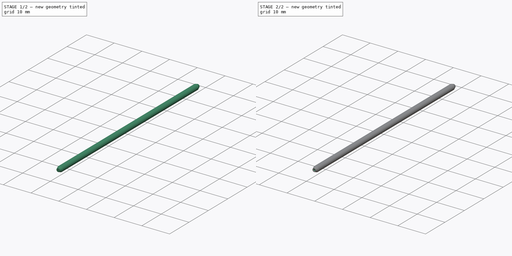
[diagram: build sequence overview — one tinted view per stage of 2, left to right]
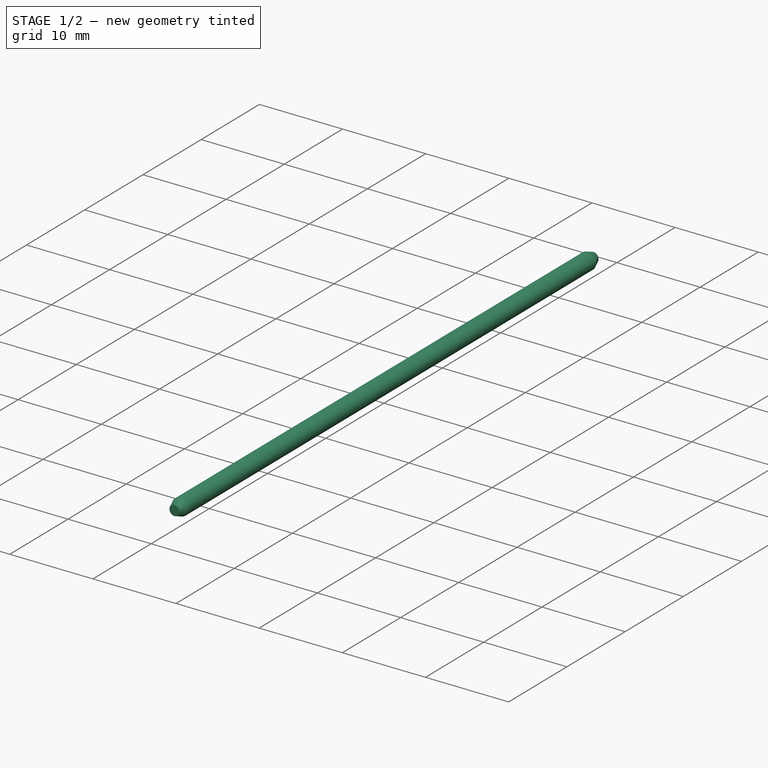
[diagram: stage 1 of 2 — iso view after this stage's code; geometry added in this stage tinted green]
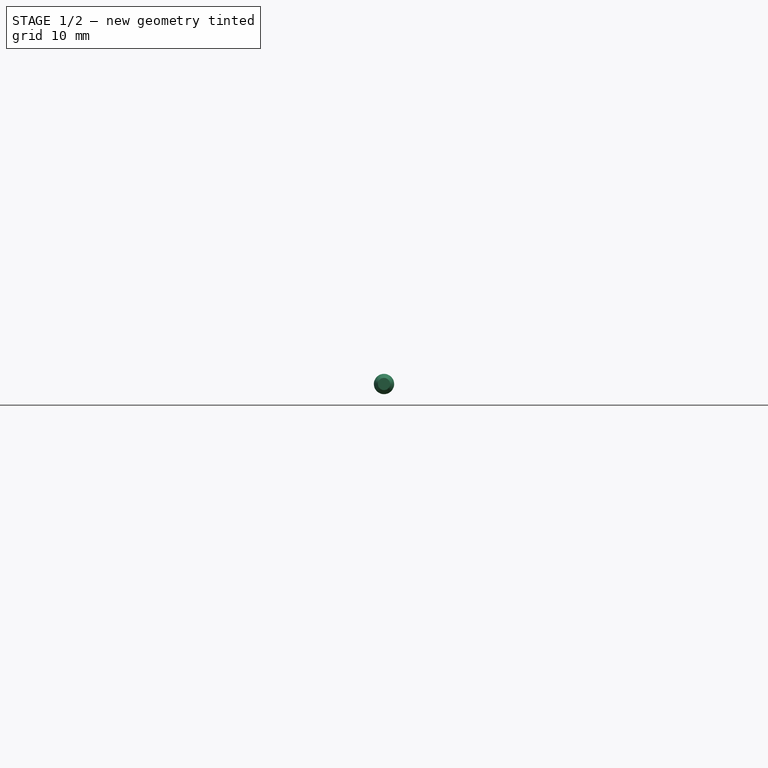
[diagram: stage 1 of 2 — front view after this stage's code; geometry added in this stage tinted green]
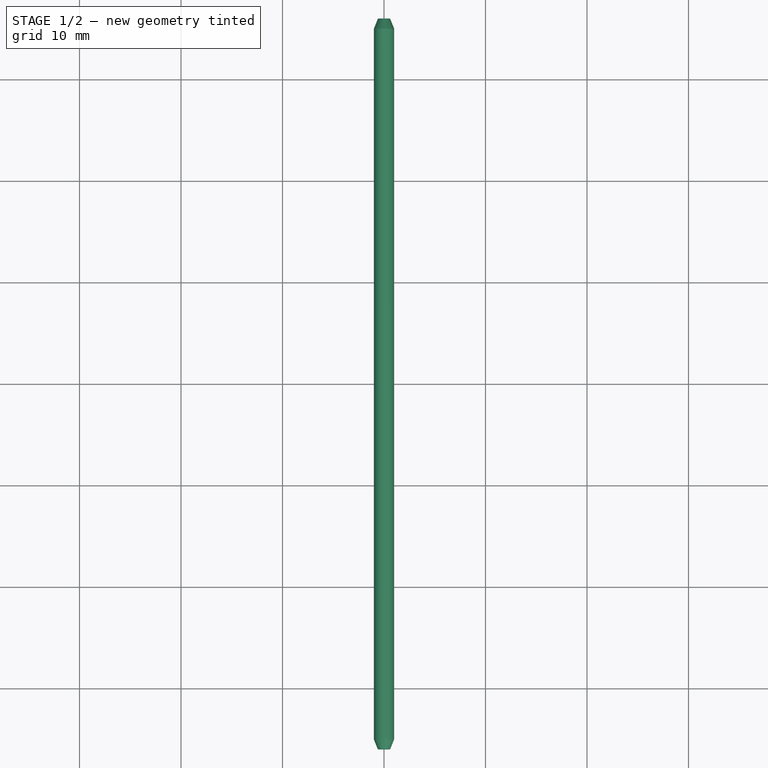
[diagram: stage 1 of 2 — top view after this stage's code; geometry added in this stage tinted green]
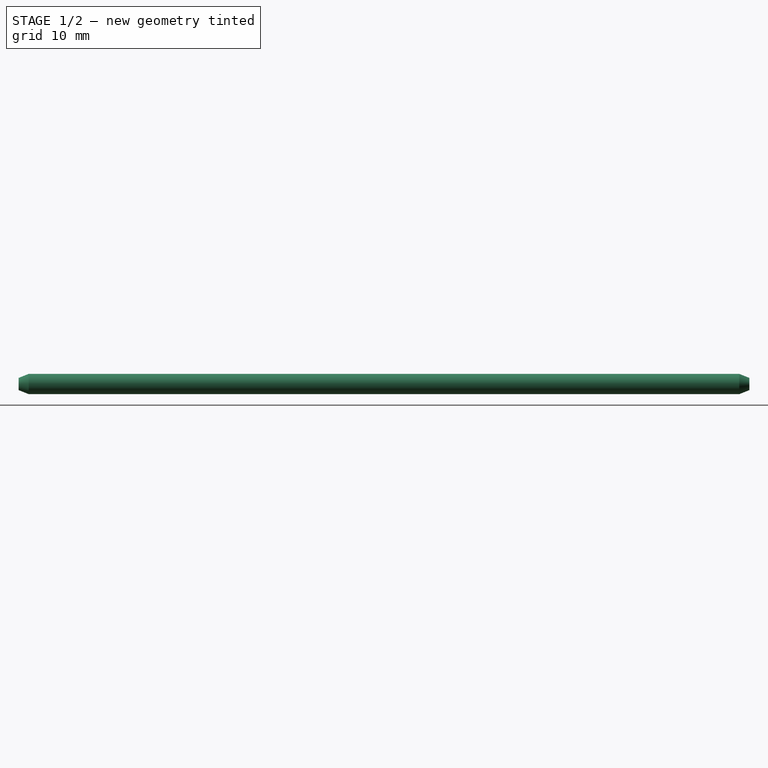
[diagram: stage 1 of 2 — right view after this stage's code; geometry added in this stage tinted green]
FCSTD DOCUMENT  (FreeCAD 1.2R45145 (Git))
Label: LinkageRod
License: All rights reserved
LicenseURL: https://en.wikipedia.org/wiki/All_rights_reserved
objects: Sketcher::SketchObject×2, App::Point×1, PartDesign::Pad×1, PartDesign::Chamfer×1, PartDesign::Groove×1, PartDesign::Mirrored×1, PartDesign::Body×1
note: 16 computed .brp shape members not serialized (recipe doc carries the construction recipe); baked Part::Feature solids carry a one-line shape summary decoded from their .brp

FEATURE [App::Point] Origin001
  Role = Origin
FEATURE [Sketcher::SketchObject] Sketch
  ArcFitTolerance = 1e-06
  AttachmentSupport = -> [XZ_Plane]
  ExternalTypes = [0]
  FullyConstrained = true
  MakeInternals = false
  MapMode = 5
  Placement = pos=(0,0,0) rot=(1,0,0;1.5708rad)
  sketch-geometry (1):
    g0: Circle CenterX=0 CenterY=0 CenterZ=0 NormalX=0 NormalY=0 NormalZ=1 AngleXU=0 Radius=1
  constraints (2):
    c: Coincident(g0,g-1)
    c: Diameter(g0) = 2
FEATURE [PartDesign::Pad] Pad
  Direction = (0,-1,2e-16)
  Length = 72
  Length2 = 10
  Placement = pos=(0,0,0) rot=(1,0,0;1.5708rad)
  Profile = -> Sketch
  ReferenceAxis = -> Sketch [N_Axis]
  Refine = true
  SideType = 2
  Suppressed = false
  Type = 0
  Type2 = 0
FEATURE [PartDesign::Chamfer] Chamfer
  Angle = 45
  Base = -> Pad [Edge3,Edge2]
  BaseFeature = -> Pad
  ChamferType = 1
  FlipDirection = false
  Placement = pos=(0,0,0) rot=(1,0,0;1.5708rad)
  Refine = true
  Size = 1
  Size2 = 0.4
  SupportTransform = false
  Suppressed = false
  UseAllEdges = false
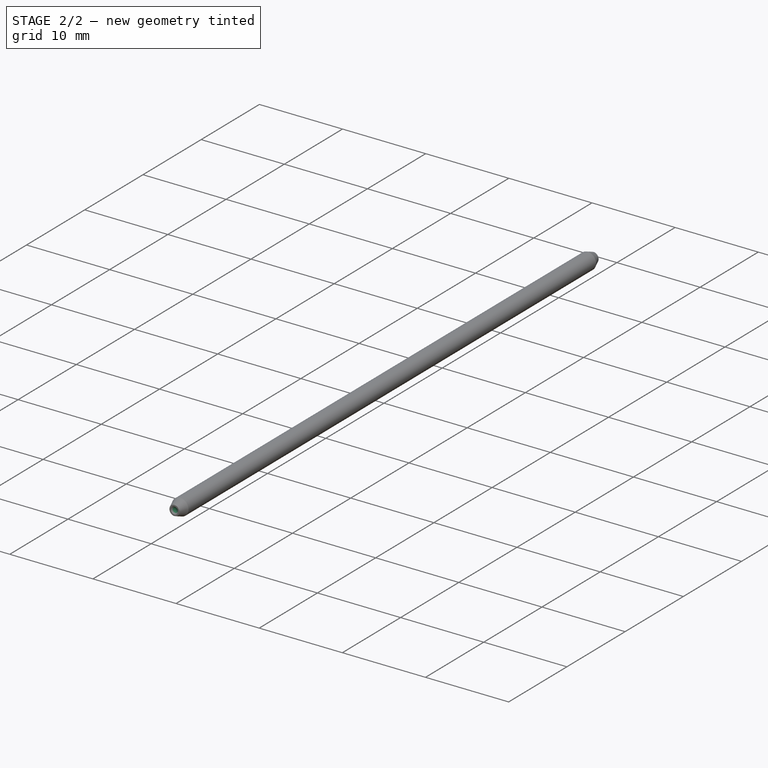
[diagram: stage 2 of 2 — iso view after this stage's code; geometry added in this stage tinted green]
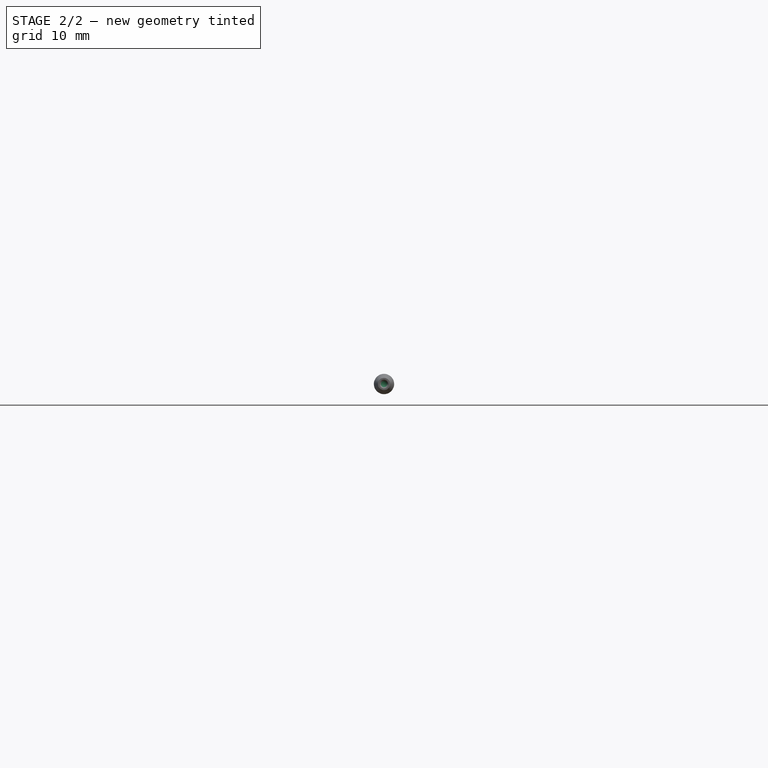
[diagram: stage 2 of 2 — front view after this stage's code; geometry added in this stage tinted green]
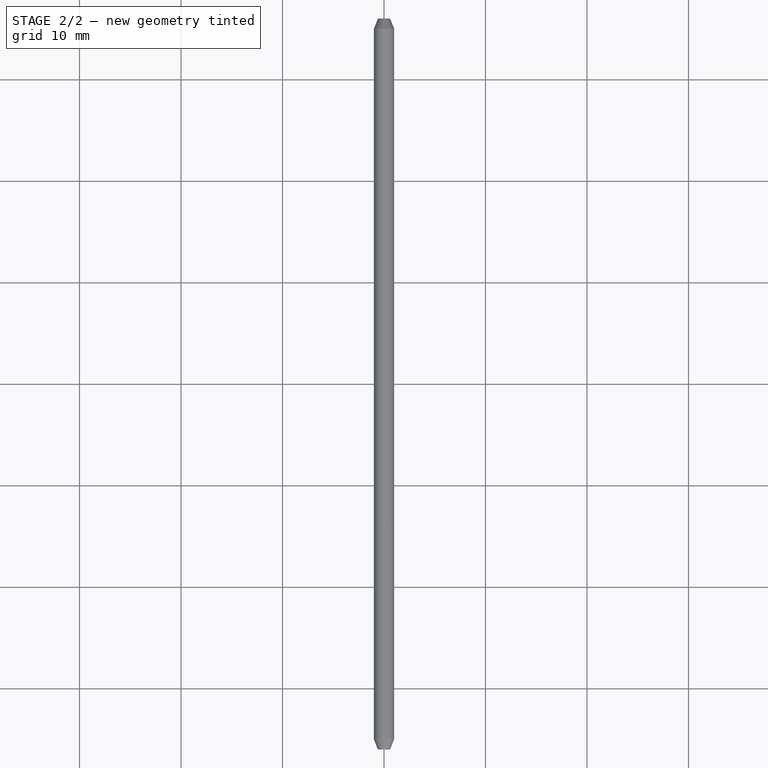
[diagram: stage 2 of 2 — top view after this stage's code; geometry added in this stage tinted green]
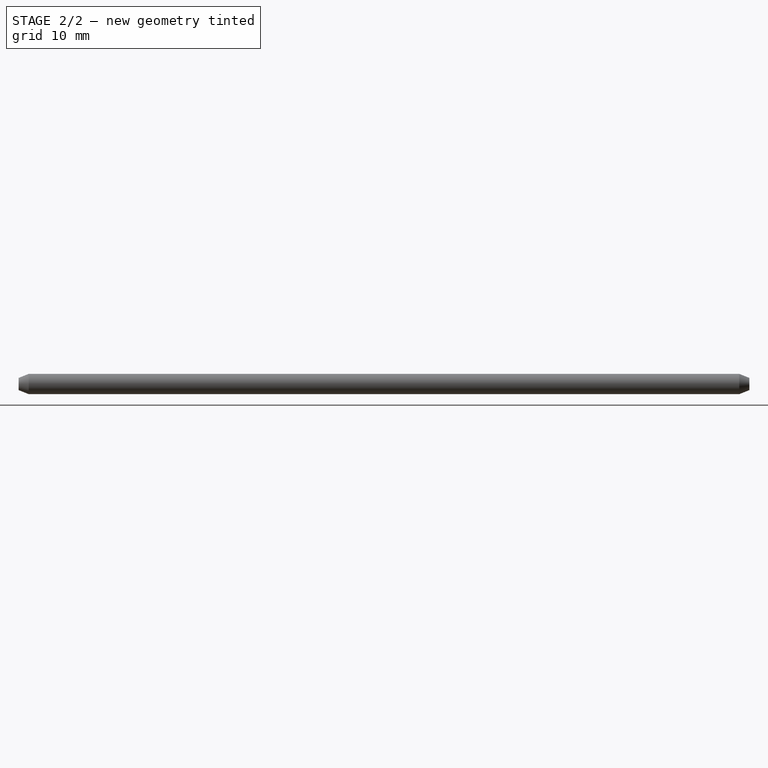
[diagram: stage 2 of 2 — right view after this stage's code; geometry added in this stage tinted green]
FEATURE [Sketcher::SketchObject] Sketch002
  ArcFitTolerance = 1e-06
  AttachmentSupport = -> [Origin]
  ExternalTypes = [0]
  FullyConstrained = true
  MakeInternals = false
  MapMode = 5
  Placement = pos=(0,0,0) rot=(0.57735,0.57735,0.57735;2.0944rad)
  sketch-geometry (2):
    g0: ArcOfCircle CenterX=-36.25 CenterY=0 CenterZ=0 NormalX=0 NormalY=0 NormalZ=1 AngleXU=0 Radius=0.5 StartAngle=0 EndAngle=3.14159
    g1: LineSegment StartX=-36.75 StartY=1e-16 StartZ=0 EndX=-35.75 EndY=1e-16 EndZ=0
  constraints (7):
    c: PointOnObject(g0,g-1)
    c: DistanceX(g0,g-1) = 36.25
    c: Horizontal(g1)
    c: PointOnObject(g1,g-1)
    c: Diameter(g0) = 1
    c: Coincident(g1,g0)
    c: Coincident(g1,g0)
FEATURE [PartDesign::Groove] Groove
  Angle = 360
  Angle2 = 60
  Axis = (1e-16,1,-1e-16)
  Base = (0,0,0)
  BaseFeature = -> Chamfer
  Placement = pos=(0,0,0) rot=(1,0,0;1.5708rad)
  Profile = -> Sketch002
  ReferenceAxis = -> Y_Axis
  Refine = true
  Reversed = true
  Suppressed = false
  Type = 0
FEATURE [PartDesign::Mirrored] Mirrored
  BaseFeature = -> Groove
  MirrorPlane = -> XZ_Plane
  Originals = -> [Groove]
  Placement = pos=(0,0,0) rot=(1,0,0;1.5708rad)
  Refine = true
  Suppressed = false
  TransformMode = 0
FEATURE [PartDesign::Body] Body  label="LinkageRod"
  AllowCompound = false
  Group = -> [Sketch,Pad,Chamfer,Sketch002,Groove,Mirrored]
  Origin = -> Origin
  Tip = -> Mirrored
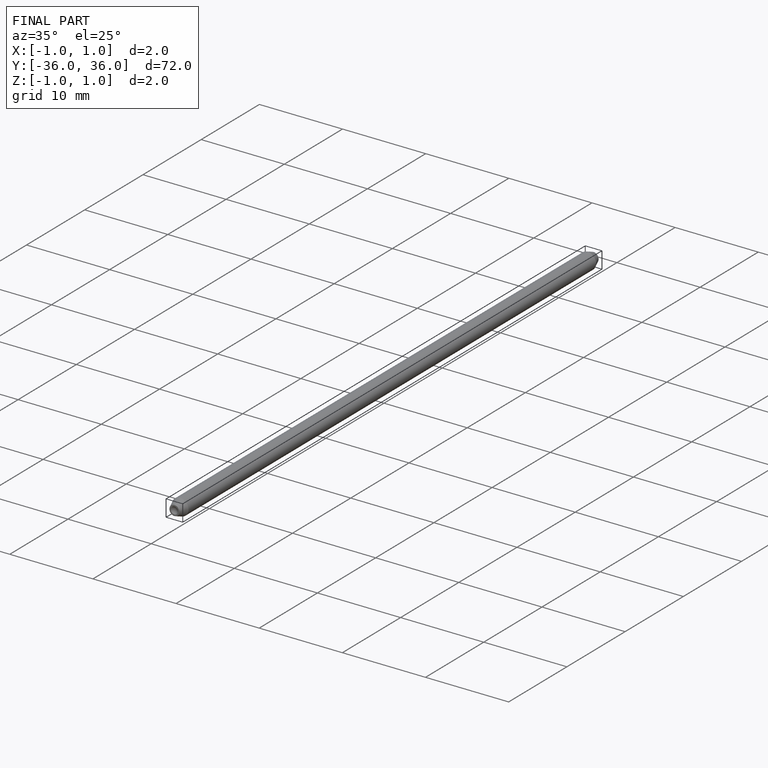
[diagram: finished part — iso view with bounding-box wireframe]
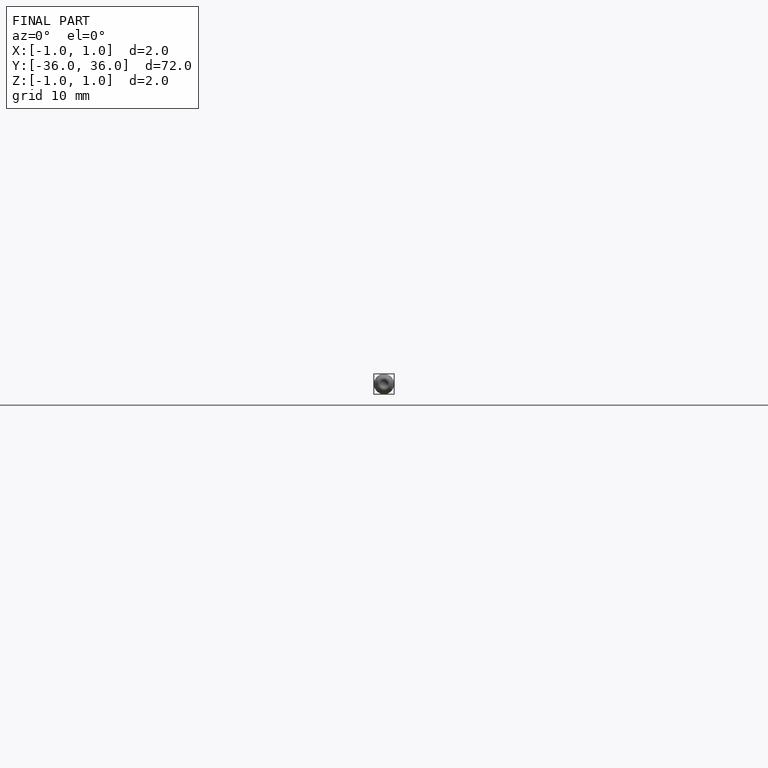
[diagram: finished part — front view with bounding-box wireframe]
